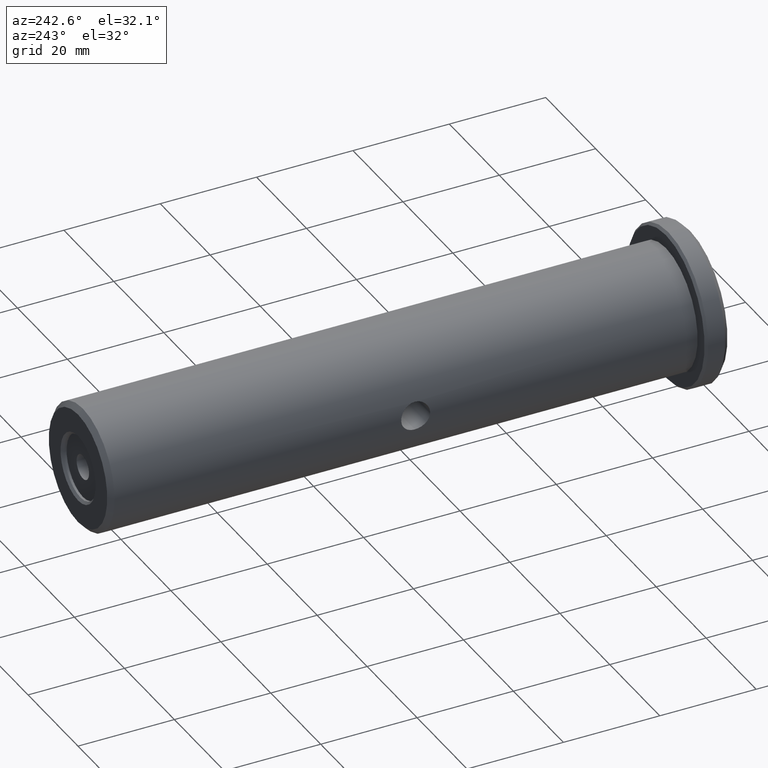
[diagram: clean part render]
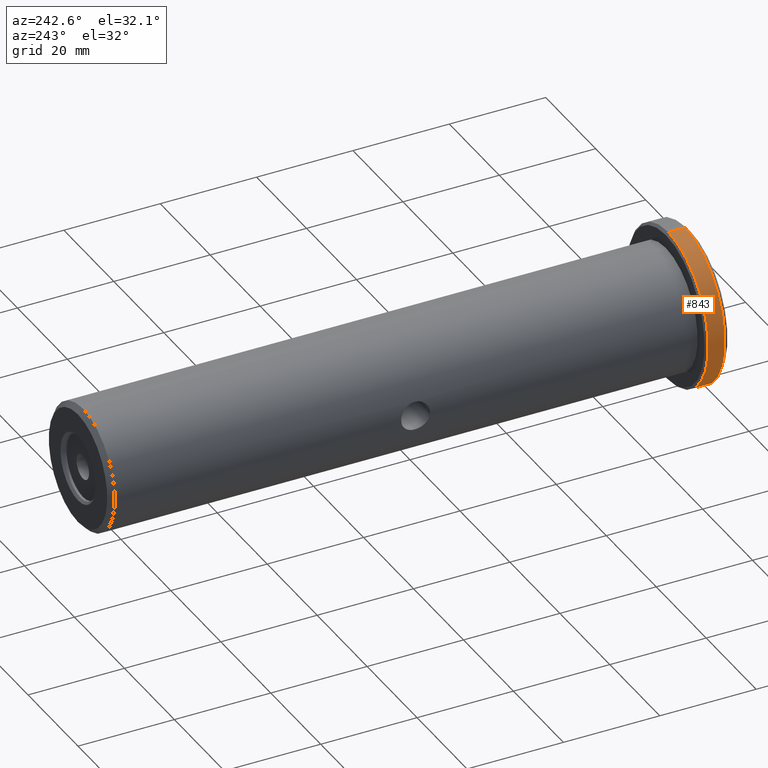
[diagram: same view with one face highlighted and labeled with its STEP entity id]
A machine part, auxiliary view. The second image highlights one B-rep face of the part: STEP entity #843.
In plain terms, the highlighted cylindrical surface (partial cylindrical patch) has radius 16 mm, axis along (0, 1, 0).
Its self-contained STEP definition (entity closure, byte-faithful):
#25 = LINE ( 'NONE', #860, #264 ) ;
#35 = FACE_OUTER_BOUND ( 'NONE', #811, .T. ) ;
#56 = EDGE_CURVE ( 'NONE', #439, #229, #518, .T. ) ;
#101 = CIRCLE ( 'NONE', #1001, 16.00000000000000700 ) ;
#103 = AXIS2_PLACEMENT_3D ( 'NONE', #362, #333, #359 ) ;
#135 = EDGE_CURVE ( 'NONE', #393, #439, #25, .T. ) ;
#151 = DIRECTION ( 'NONE',  ( 0.0000000000000000000, 1.000000000000000000, 0.0000000000000000000 ) ) ;
#172 = DIRECTION ( 'NONE',  ( 0.0000000000000000000, 1.000000000000000000, 0.0000000000000000000 ) ) ;
#187 = LINE ( 'NONE', #827, #603 ) ;
#229 = VERTEX_POINT ( 'NONE', #841 ) ;
#264 = VECTOR ( 'NONE', #172, 1000.000000000000000 ) ;
#333 = DIRECTION ( 'NONE',  ( -0.0000000000000000000, 1.000000000000000000, -0.0000000000000000000 ) ) ;
#359 = DIRECTION ( 'NONE',  ( 0.0000000000000000000, 0.0000000000000000000, -1.000000000000000000 ) ) ;
#362 = CARTESIAN_POINT ( 'NONE',  ( 0.0000000000000000000, -33.60000000000000100, 0.0000000000000000000 ) ) ;
#364 = DIRECTION ( 'NONE',  ( 0.0000000000000000000, 0.0000000000000000000, 1.000000000000000000 ) ) ;
#371 = CARTESIAN_POINT ( 'NONE',  ( 0.0000000000000000000, 26.50383876709786800, 0.0000000000000000000 ) ) ;
#386 = DIRECTION ( 'NONE',  ( 0.0000000000000000000, 0.0000000000000000000, 1.000000000000000000 ) ) ;
#393 = VERTEX_POINT ( 'NONE', #902 ) ;
#439 = VERTEX_POINT ( 'NONE', #734 ) ;
#441 = ORIENTED_EDGE ( 'NONE', *, *, #921, .T. ) ;
#451 = CYLINDRICAL_SURFACE ( 'NONE', #1011, 16.00000000000000700 ) ;
#458 = CARTESIAN_POINT ( 'NONE',  ( 0.0000000000000000000, -37.09999999999999400, 0.0000000000000000000 ) ) ;
#468 = VERTEX_POINT ( 'NONE', #982 ) ;
#518 = CIRCLE ( 'NONE', #103, 16.00000000000000700 ) ;
#603 = VECTOR ( 'NONE', #719, 1000.000000000000000 ) ;
#670 = ORIENTED_EDGE ( 'NONE', *, *, #135, .F. ) ;
#719 = DIRECTION ( 'NONE',  ( 0.0000000000000000000, 1.000000000000000000, 0.0000000000000000000 ) ) ;
#734 = CARTESIAN_POINT ( 'NONE',  ( 1.959434878635766300E-015, -33.60000000000000100, -16.00000000000000700 ) ) ;
#766 = EDGE_CURVE ( 'NONE', #393, #468, #101, .T. ) ;
#811 = EDGE_LOOP ( 'NONE', ( #670, #957, #441, #874 ) ) ;
#827 = CARTESIAN_POINT ( 'NONE',  ( 0.0000000000000000000, 26.50383876709786800, 16.00000000000000700 ) ) ;
#841 = CARTESIAN_POINT ( 'NONE',  ( 1.959434878635766300E-015, -33.60000000000000100, 16.00000000000000700 ) ) ;
#843 = ADVANCED_FACE ( 'NONE', ( #35 ), #451, .T. ) ;
#860 = CARTESIAN_POINT ( 'NONE',  ( 1.959434878635766300E-015, 26.50383876709786800, -16.00000000000000700 ) ) ;
#874 = ORIENTED_EDGE ( 'NONE', *, *, #56, .F. ) ;
#902 = CARTESIAN_POINT ( 'NONE',  ( 1.959434878635766300E-015, -37.09999999999999400, -16.00000000000000700 ) ) ;
#921 = EDGE_CURVE ( 'NONE', #468, #229, #187, .T. ) ;
#949 = DIRECTION ( 'NONE',  ( 0.0000000000000000000, 1.000000000000000000, 0.0000000000000000000 ) ) ;
#957 = ORIENTED_EDGE ( 'NONE', *, *, #766, .T. ) ;
#982 = CARTESIAN_POINT ( 'NONE',  ( 0.0000000000000000000, -37.09999999999999400, 16.00000000000000700 ) ) ;
#1001 = AXIS2_PLACEMENT_3D ( 'NONE', #458, #949, #364 ) ;
#1011 = AXIS2_PLACEMENT_3D ( 'NONE', #371, #151, #386 ) ;